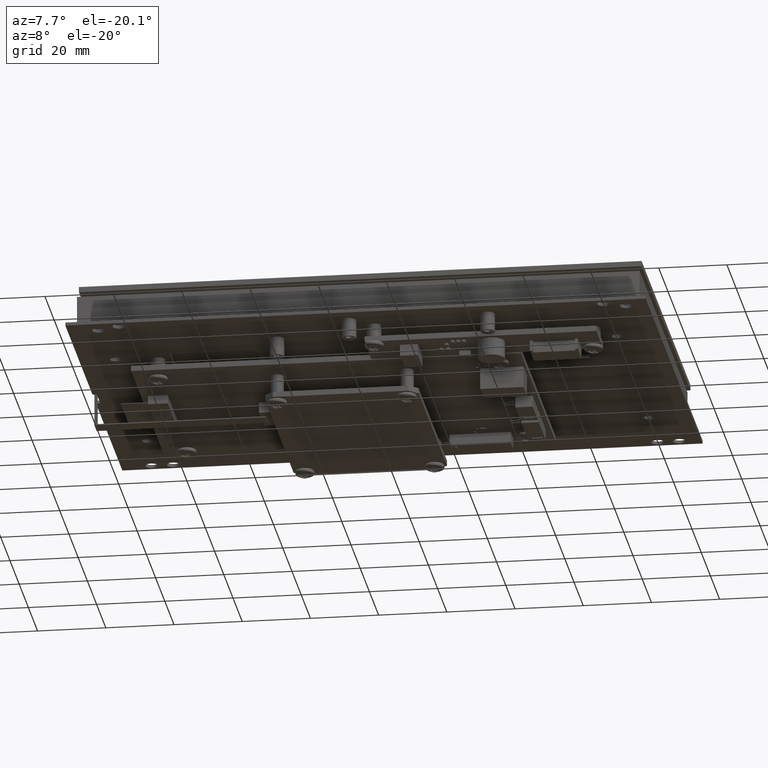
[diagram: clean part render]
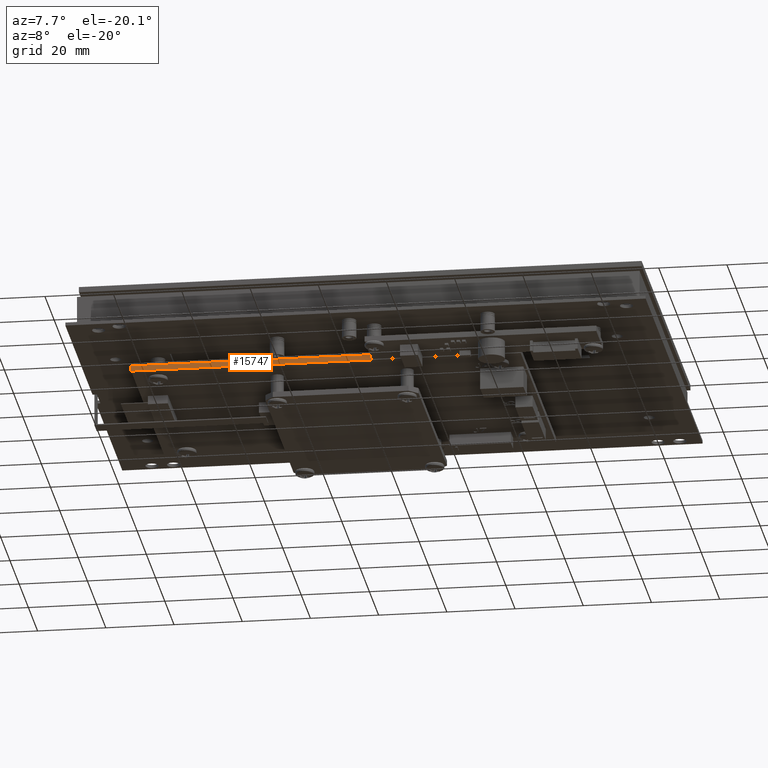
[diagram: same view with one face highlighted and labeled with its STEP entity id]
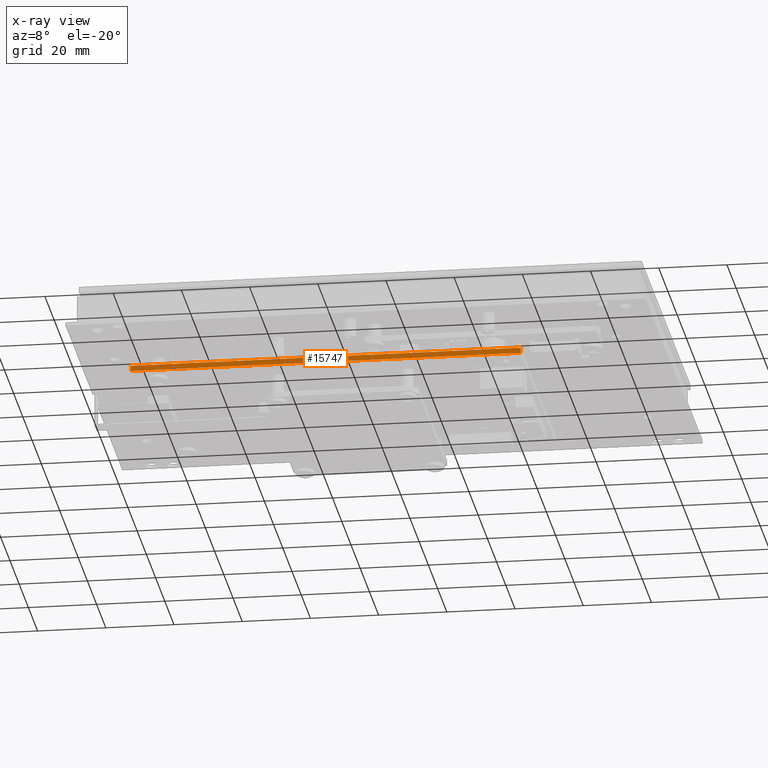
[diagram: x-ray of the same camera — body ghosted, the highlighted face saturated]
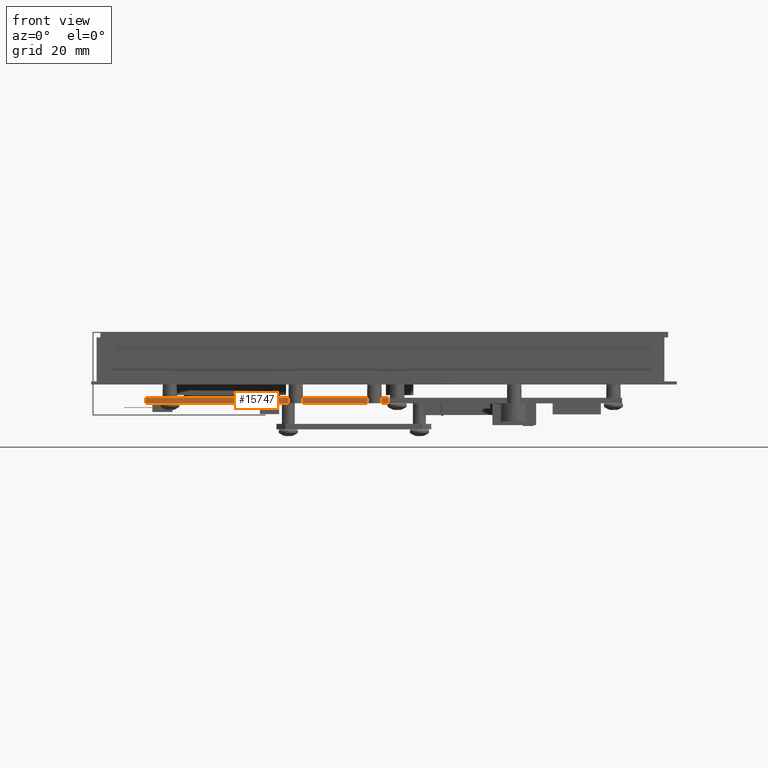
[diagram: same view with one face highlighted and labeled with its STEP entity id]
A machine part, auxiliary view. The second image highlights one B-rep face of the part: STEP entity #15747.
The next image is the same camera in x-ray: the body ghosted, the highlighted face saturated — about 0% of this face is hidden behind the body in this view.
A second angle (front view) of the same face is appended — the face is thin or edge-on in the first view.
In plain terms, the highlighted planar face has unit normal (-0, 1, 0).
Its self-contained STEP definition (entity closure, byte-faithful):
#4695 = CARTESIAN_POINT ( 'NONE',  ( 2.249999999999982700, 5.463695987328526400E-016, 1.499999999999991300 ) ) ;
#4697 = CARTESIAN_POINT ( 'NONE',  ( -2.249999999999991100, 5.463695987328526400E-016, 1.499999999999986900 ) ) ;
#4705 = CARTESIAN_POINT ( 'NONE',  ( -2.249999999999991100, 0.06300000000000001400, 1.499999999999986900 ) ) ;
#4794 = CARTESIAN_POINT ( 'NONE',  ( 2.249999999999982700, 0.06300000000000001400, 1.499999999999991300 ) ) ;
#5229 = LINE ( 'NONE', #5236, #12218 ) ;
#5236 = CARTESIAN_POINT ( 'NONE',  ( -2.249999999999991100, 0.06300000000000001400, 1.499999999999986900 ) ) ;
#5237 = DIRECTION ( 'NONE',  ( 1.000000000000000000, 4.437342591868207200E-031, -2.566985047891624200E-030 ) ) ;
#6673 = AXIS2_PLACEMENT_3D ( 'NONE', #6954, #6968, #6969 ) ;
#6826 = VECTOR ( 'NONE', #13240, 39.37007874015748100 ) ;
#6838 = VECTOR ( 'NONE', #13275, 39.37007874015748100 ) ;
#6841 = VECTOR ( 'NONE', #13281, 39.37007874015748100 ) ;
#6954 = CARTESIAN_POINT ( 'NONE',  ( -2.249999999999991100, 0.06300000000000001400, 1.499999999999986900 ) ) ;
#6965 = FACE_OUTER_BOUND ( 'NONE', #9551, .T. ) ;
#6966 = PLANE ( 'NONE',  #6673 ) ;
#6968 = DIRECTION ( 'NONE',  ( -2.566985047891624200E-030, 1.232595164407839700E-031, -1.000000000000000000 ) ) ;
#6969 = DIRECTION ( 'NONE',  ( -1.000000000000000000, -4.437342591868208000E-031, 2.566985047891624200E-030 ) ) ;
#8706 = VERTEX_POINT ( 'NONE', #4695 ) ;
#8708 = VERTEX_POINT ( 'NONE', #4697 ) ;
#8716 = VERTEX_POINT ( 'NONE', #4705 ) ;
#8805 = VERTEX_POINT ( 'NONE', #4794 ) ;
#9003 = EDGE_CURVE ( 'NONE', #8716, #8805, #5229, .T. ) ;
#9551 = EDGE_LOOP ( 'NONE', ( #21419, #21829, #21410, #21790 ) ) ;
#12218 = VECTOR ( 'NONE', #5237, 39.37007874015748100 ) ;
#13230 = LINE ( 'NONE', #13238, #6826 ) ;
#13238 = CARTESIAN_POINT ( 'NONE',  ( -2.249999999999991100, 5.463695987328526400E-016, 1.499999999999986900 ) ) ;
#13240 = DIRECTION ( 'NONE',  ( 1.000000000000000000, 4.437342591868207200E-031, -2.566985047891624200E-030 ) ) ;
#13266 = LINE ( 'NONE', #13274, #6838 ) ;
#13274 = CARTESIAN_POINT ( 'NONE',  ( -2.249999999999991100, 0.06300000000000001400, 1.499999999999986900 ) ) ;
#13275 = DIRECTION ( 'NONE',  ( -1.133987551255208500E-030, -1.000000000000000000, -1.232595164407835300E-031 ) ) ;
#13279 = LINE ( 'NONE', #13280, #6841 ) ;
#13280 = CARTESIAN_POINT ( 'NONE',  ( 2.249999999999982700, 0.06300000000000001400, 1.499999999999991300 ) ) ;
#13281 = DIRECTION ( 'NONE',  ( -1.133987551255208500E-030, -1.000000000000000000, -1.232595164407835300E-031 ) ) ;
#15747 = ADVANCED_FACE ( 'NONE', ( #6965 ), #6966, .F. ) ;
#15951 = EDGE_CURVE ( 'NONE', #8708, #8706, #13230, .T. ) ;
#15963 = EDGE_CURVE ( 'NONE', #8716, #8708, #13266, .T. ) ;
#15965 = EDGE_CURVE ( 'NONE', #8805, #8706, #13279, .T. ) ;
#21410 = ORIENTED_EDGE ( 'NONE', *, *, #9003, .F. ) ;
#21419 = ORIENTED_EDGE ( 'NONE', *, *, #15951, .T. ) ;
#21790 = ORIENTED_EDGE ( 'NONE', *, *, #15963, .T. ) ;
#21829 = ORIENTED_EDGE ( 'NONE', *, *, #15965, .F. ) ;